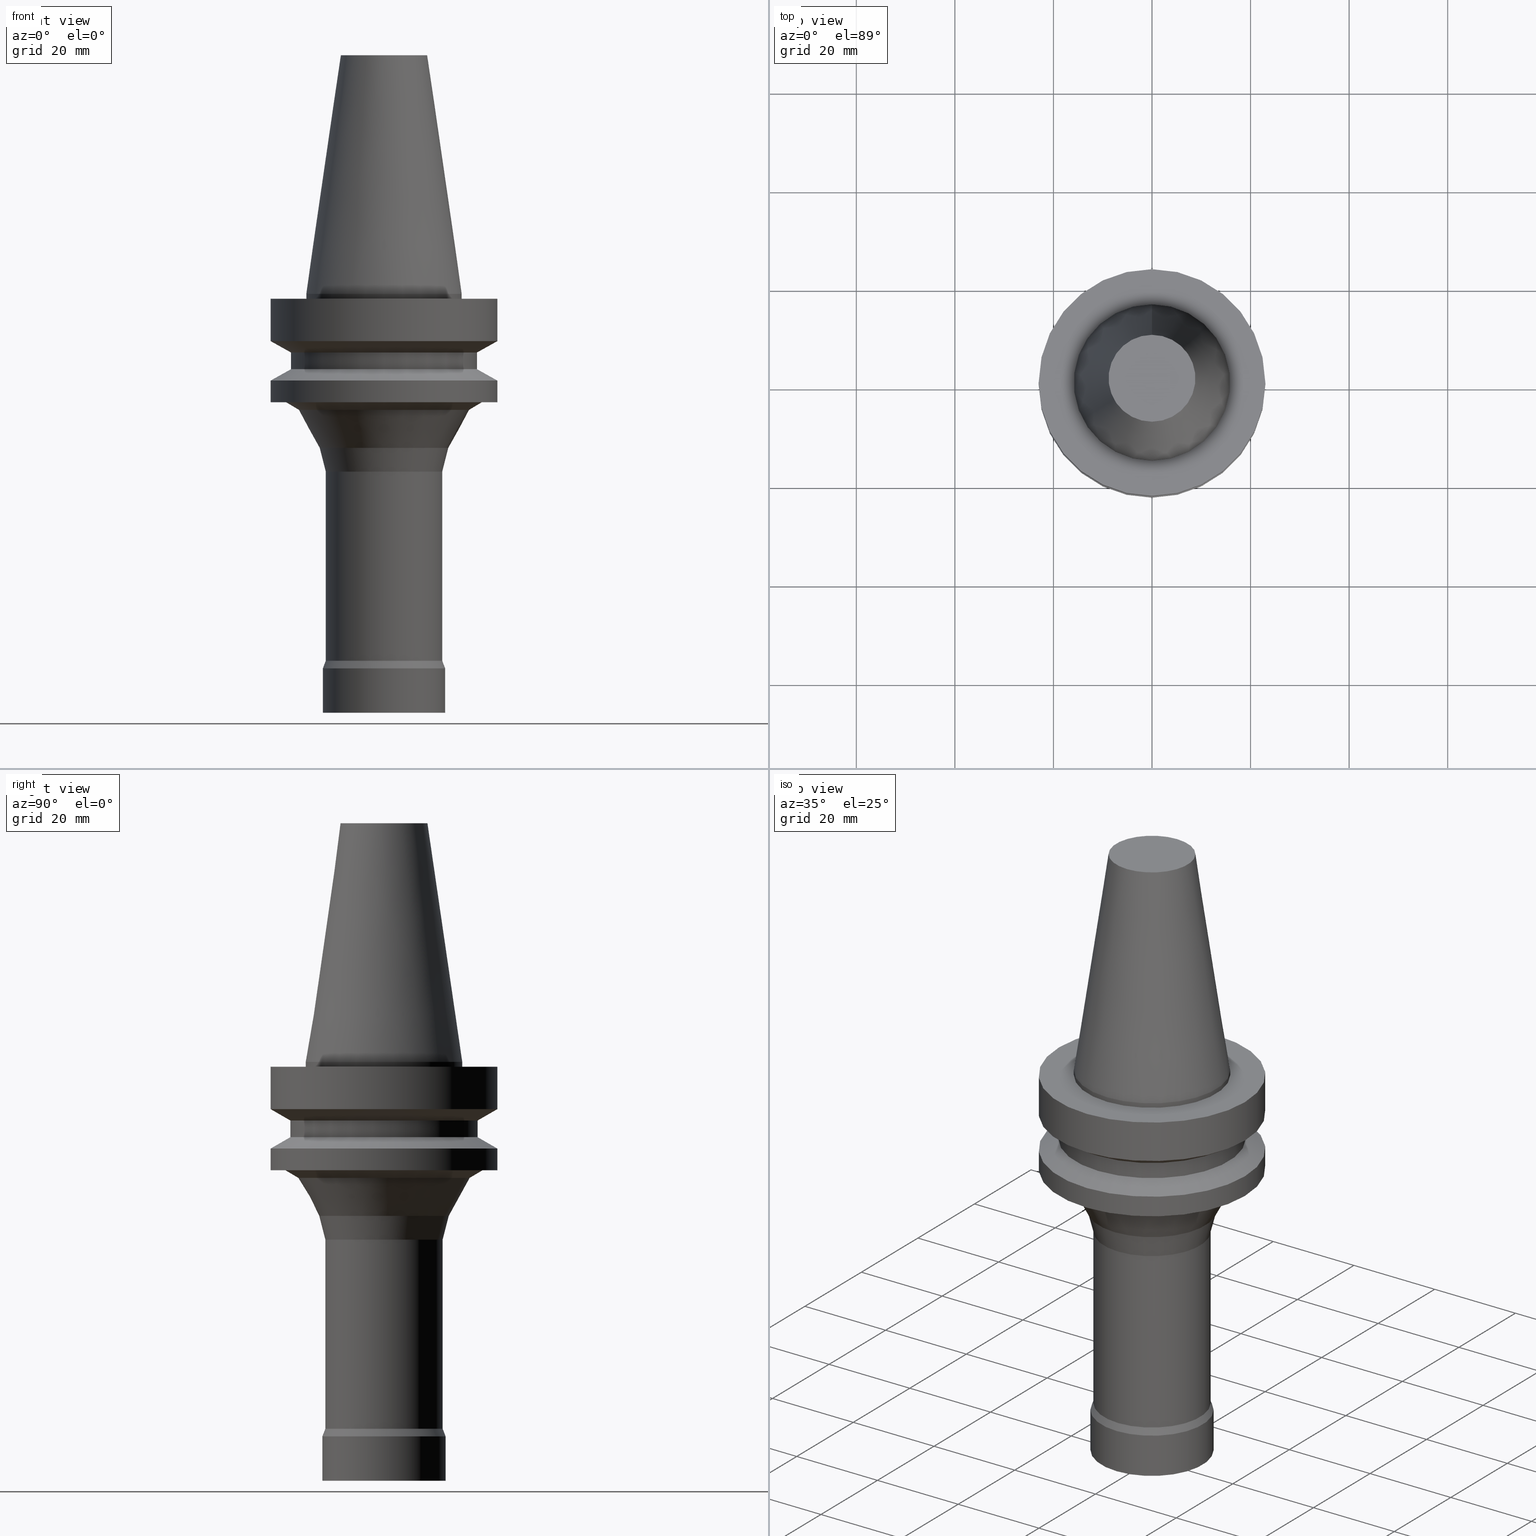
[diagram: canonical four-view strip — front | top / right | iso, engineering-drawing reading convention]
A machine part, canonical four-view strip (front | top / right | iso — engineering-drawing reading convention). The complete STEP part file that produces these views, byte-faithful:
ISO-10303-21;
HEADER;
FILE_DESCRIPTION((''),'1');
FILE_NAME('//Big_tech03/bigt/Translate/21_\X2\8F2A90ED7DDA\X0\-DXF/71_\X2\5207524A5DE55177\X0\/01_\X2\30A830F330C930DF30EB52A05DE5\X0\/01_\X2\30D530EB30AB30C330C830DF30EB\X0\ FCM/BBT/BBT30/BBT30-FCM25092L-85.stp','2012-05-29T08:19:13',(''),(''),'Spatial Interop R18','Kubotek KeyCreator V8.5.1 (14335)',' ');
FILE_SCHEMA(('CONFIG_CONTROL_DESIGN'));
ENDSEC;
DATA;
#1=DESIGN_CONTEXT('',#27,'design');
#2=APPLICATION_PROTOCOL_DEFINITION('INTERNATIONAL STANDARD','config_control_design',1994,#27);
#3=PRODUCT_CATEGORY_RELATIONSHIP('NONE','NONE',#28,#29);
#4=DATE_AND_TIME(#30,#31);
#5=DATE_TIME_ROLE('creation_date');
#6=DATE_TIME_ROLE('classification_date');
#7=PERSON_AND_ORGANIZATION_ROLE('creator');
#8=PERSON_AND_ORGANIZATION_ROLE('design_supplier');
#9=PERSON_AND_ORGANIZATION_ROLE('classification_officer');
#10=PERSON_AND_ORGANIZATION_ROLE('design_owner');
#11=APPROVAL_PERSON_ORGANIZATION(#32,#33,#34);
#12=APPROVAL_DATE_TIME(#4,#33);
#13=CC_DESIGN_APPROVAL(#33,(#35,#36,#37));
#14=CC_DESIGN_DATE_AND_TIME_ASSIGNMENT(#4,#5,(#37));
#15=CC_DESIGN_DATE_AND_TIME_ASSIGNMENT(#4,#6,(#35));
#16=CC_DESIGN_PERSON_AND_ORGANIZATION_ASSIGNMENT(#32,#10,(#38));
#17=CC_DESIGN_PERSON_AND_ORGANIZATION_ASSIGNMENT(#32,#7,(#37));
#18=CC_DESIGN_PERSON_AND_ORGANIZATION_ASSIGNMENT(#32,#7,(#36));
#19=CC_DESIGN_PERSON_AND_ORGANIZATION_ASSIGNMENT(#32,#8,(#36));
#20=CC_DESIGN_SECURITY_CLASSIFICATION(#35,(#36));
#21=CC_DESIGN_PERSON_AND_ORGANIZATION_ASSIGNMENT(#32,#9,(#35));
#22=SHAPE_DEFINITION_REPRESENTATION(#39,#40);
#23= (GEOMETRIC_REPRESENTATION_CONTEXT(3)GLOBAL_UNCERTAINTY_ASSIGNED_CONTEXT((#43))GLOBAL_UNIT_ASSIGNED_CONTEXT((#45,#46,#47))REPRESENTATION_CONTEXT('NONE','WORKSPACE'));
#27=APPLICATION_CONTEXT('CONFIGURATION CONTROLLED 3D DESIGNS OF MECHANICAL PARTS AND ASSEMBLIES');
#28=PRODUCT_CATEGORY('part','NONE');
#29=PRODUCT_RELATED_PRODUCT_CATEGORY('detail',' ',(#38));
#30=CALENDAR_DATE(2012,29,4);
#31=LOCAL_TIME(17,19,13.0,#49);
#32=PERSON_AND_ORGANIZATION(#50,#51);
#33=APPROVAL(#52,'SOLID MODEL');
#34=APPROVAL_ROLE('APPROVED');
#35=SECURITY_CLASSIFICATION('','',#53);
#36=PRODUCT_DEFINITION_FORMATION_WITH_SPECIFIED_SOURCE(' ','NONE',#38,.NOT_KNOWN.);
#37=PRODUCT_DEFINITION('NONE','NONE',#36,#1);
#38=PRODUCT('1','1','PART-1-DESC',(#54));
#39=PRODUCT_DEFINITION_SHAPE('NONE','NONE',#37);
#40=ADVANCED_BREP_SHAPE_REPRESENTATION('1',(#55,#56),#23);
#43=UNCERTAINTY_MEASURE_WITH_UNIT(LENGTH_MEASURE(1.0E-006),#45,'','');
#45= (CONVERSION_BASED_UNIT('MILLIMETRE',#59)LENGTH_UNIT()NAMED_UNIT(#62));
#46= (NAMED_UNIT(#64)PLANE_ANGLE_UNIT()SI_UNIT($,.RADIAN.));
#47= (NAMED_UNIT(#64)SOLID_ANGLE_UNIT()SI_UNIT($,.STERADIAN.));
#49=COORDINATED_UNIVERSAL_TIME_OFFSET(9,0,.AHEAD.);
#50=PERSON('','UNSPECIFIED',$,$,$,$);
#51=ORGANIZATION('UNSPECIFIED','UNSPECIFIED','UNSPECIFIED');
#52=APPROVAL_STATUS('approved');
#53=SECURITY_CLASSIFICATION_LEVEL('unclassified');
#54=MECHANICAL_CONTEXT('',#27,'mechanical');
#55=MANIFOLD_SOLID_BREP('1',#70);
#56=AXIS2_PLACEMENT_3D('',#71,#72,#73);
#59=LENGTH_MEASURE_WITH_UNIT(LENGTH_MEASURE(1.0),#74);
#62=DIMENSIONAL_EXPONENTS(1.0,0.0,0.0,0.0,0.0,0.0,0.0);
#64=DIMENSIONAL_EXPONENTS(0.0,0.0,0.0,0.0,0.0,0.0,0.0);
#70=CLOSED_SHELL('',(#75,#76,#77,#78,#79,#80,#81,#82,#83,#84,#85,#86,#87,#88,#89,#90,#91));
#71=CARTESIAN_POINT('',(0.0,0.0,0.0));
#72=DIRECTION('',(0.0,0.0,1.0));
#73=DIRECTION('',(1.0,0.0,0.0));
#74= (NAMED_UNIT(#62)LENGTH_UNIT()SI_UNIT(.MILLI.,.METRE.));
#75=ADVANCED_FACE('',(#93,#94),#95,.T.);
#76=ADVANCED_FACE('',(#96,#97),#98,.T.);
#77=ADVANCED_FACE('',(#99,#100),#101,.T.);
#78=ADVANCED_FACE('',(#102,#103),#104,.T.);
#79=ADVANCED_FACE('',(#105,#106),#107,.T.);
#80=ADVANCED_FACE('',(#108,#109),#110,.T.);
#81=ADVANCED_FACE('',(#111,#112),#113,.T.);
#82=ADVANCED_FACE('',(#114,#115),#116,.T.);
#83=ADVANCED_FACE('',(#117,#118),#119,.T.);
#84=ADVANCED_FACE('',(#120,#121),#122,.T.);
#85=ADVANCED_FACE('',(#123,#124),#125,.T.);
#86=ADVANCED_FACE('',(#126,#127),#128,.T.);
#87=ADVANCED_FACE('',(#129,#130),#131,.T.);
#88=ADVANCED_FACE('',(#132),#133,.T.);
#89=ADVANCED_FACE('',(#134,#135),#136,.T.);
#90=ADVANCED_FACE('',(#137),#138,.T.);
#91=ADVANCED_FACE('',(#139,#140),#141,.T.);
#93=FACE_OUTER_BOUND('',#142,.T.);
#94=FACE_BOUND('',#143,.T.);
#95=PLANE('',#144);
#96=FACE_BOUND('',#145,.T.);
#97=FACE_BOUND('',#146,.T.);
#98=CYLINDRICAL_SURFACE('',#147,23.0);
#99=FACE_BOUND('',#148,.T.);
#100=FACE_BOUND('',#149,.T.);
#101=CONICAL_SURFACE('',#150,21.0,1.04719755058882);
#102=FACE_BOUND('',#151,.T.);
#103=FACE_BOUND('',#152,.T.);
#104=CYLINDRICAL_SURFACE('',#153,19.0);
#105=FACE_BOUND('',#154,.T.);
#106=FACE_BOUND('',#155,.T.);
#107=CONICAL_SURFACE('',#156,21.0,1.04719755058882);
#108=FACE_BOUND('',#157,.T.);
#109=FACE_BOUND('',#158,.T.);
#110=CYLINDRICAL_SURFACE('',#159,23.0);
#111=FACE_BOUND('',#160,.T.);
#112=FACE_OUTER_BOUND('',#161,.T.);
#113=PLANE('',#162);
#114=FACE_BOUND('',#163,.T.);
#115=FACE_BOUND('',#164,.T.);
#116=CONICAL_SURFACE('',#165,18.68574234,1.03686555591075);
#117=FACE_BOUND('',#166,.T.);
#118=FACE_BOUND('',#167,.T.);
#119=CONICAL_SURFACE('',#168,15.25488347,0.502934783143004);
#120=FACE_BOUND('',#169,.T.);
#121=FACE_BOUND('',#170,.T.);
#122=CONICAL_SURFACE('',#171,12.51914113,0.251467392699992);
#123=FACE_BOUND('',#172,.T.);
#124=FACE_BOUND('',#173,.T.);
#125=CYLINDRICAL_SURFACE('',#174,11.9);
#126=FACE_BOUND('',#175,.T.);
#127=FACE_BOUND('',#176,.T.);
#128=CONICAL_SURFACE('',#177,12.2,0.369443267706016);
#129=FACE_BOUND('',#178,.T.);
#130=FACE_BOUND('',#179,.T.);
#131=CYLINDRICAL_SURFACE('',#180,12.5);
#132=FACE_OUTER_BOUND('',#181,.T.);
#133=PLANE('',#182);
#134=FACE_BOUND('',#183,.T.);
#135=FACE_BOUND('',#184,.T.);
#136=CYLINDRICAL_SURFACE('',#185,15.875);
#137=FACE_OUTER_BOUND('',#186,.T.);
#138=PLANE('',#187);
#139=FACE_BOUND('',#188,.T.);
#140=FACE_BOUND('',#189,.T.);
#141=CONICAL_SURFACE('',#190,12.3457500009933,0.14481587001362);
#142=EDGE_LOOP('',(#191));
#143=EDGE_LOOP('',(#192));
#144=AXIS2_PLACEMENT_3D('',#193,#194,#195);
#145=EDGE_LOOP('',(#196));
#146=EDGE_LOOP('',(#197));
#147=AXIS2_PLACEMENT_3D('',#198,#199,#200);
#148=EDGE_LOOP('',(#201));
#149=EDGE_LOOP('',(#202));
#150=AXIS2_PLACEMENT_3D('',#203,#204,#205);
#151=EDGE_LOOP('',(#206));
#152=EDGE_LOOP('',(#207));
#153=AXIS2_PLACEMENT_3D('',#208,#209,#210);
#154=EDGE_LOOP('',(#211));
#155=EDGE_LOOP('',(#212));
#156=AXIS2_PLACEMENT_3D('',#213,#214,#215);
#157=EDGE_LOOP('',(#216));
#158=EDGE_LOOP('',(#217));
#159=AXIS2_PLACEMENT_3D('',#218,#219,#220);
#160=EDGE_LOOP('',(#221));
#161=EDGE_LOOP('',(#222));
#162=AXIS2_PLACEMENT_3D('',#223,#224,#225);
#163=EDGE_LOOP('',(#226));
#164=EDGE_LOOP('',(#227));
#165=AXIS2_PLACEMENT_3D('',#228,#229,#230);
#166=EDGE_LOOP('',(#231));
#167=EDGE_LOOP('',(#232));
#168=AXIS2_PLACEMENT_3D('',#233,#234,#235);
#169=EDGE_LOOP('',(#236));
#170=EDGE_LOOP('',(#237));
#171=AXIS2_PLACEMENT_3D('',#238,#239,#240);
#172=EDGE_LOOP('',(#241));
#173=EDGE_LOOP('',(#242));
#174=AXIS2_PLACEMENT_3D('',#243,#244,#245);
#175=EDGE_LOOP('',(#246));
#176=EDGE_LOOP('',(#247));
#177=AXIS2_PLACEMENT_3D('',#248,#249,#250);
#178=EDGE_LOOP('',(#251));
#179=EDGE_LOOP('',(#252));
#180=AXIS2_PLACEMENT_3D('',#253,#254,#255);
#181=EDGE_LOOP('',(#256));
#182=AXIS2_PLACEMENT_3D('',#257,#258,#259);
#183=EDGE_LOOP('',(#260));
#184=EDGE_LOOP('',(#261));
#185=AXIS2_PLACEMENT_3D('',#262,#263,#264);
#186=EDGE_LOOP('',(#265));
#187=AXIS2_PLACEMENT_3D('',#266,#267,#268);
#188=EDGE_LOOP('',(#269));
#189=EDGE_LOOP('',(#270));
#190=AXIS2_PLACEMENT_3D('',#271,#272,#273);
#191=ORIENTED_EDGE('',*,*,#274,.F.);
#192=ORIENTED_EDGE('',*,*,#275,.T.);
#193=CARTESIAN_POINT('',(6.12323399573674E-017,19.4375,-0.999999999999998));
#194=DIRECTION('',(-6.12323399573677E-017,-1.22464679914735E-016,1.0));
#195=DIRECTION('',(1.23259516440783E-032,-1.0,-1.22464679914735E-016));
#196=ORIENTED_EDGE('',*,*,#276,.F.);
#197=ORIENTED_EDGE('',*,*,#274,.T.);
#198=CARTESIAN_POINT('',(3.24531401774049E-016,6.49062803548097E-016,-5.3));
#199=DIRECTION('',(-6.12323399573677E-017,-1.22464679914735E-016,1.0));
#200=DIRECTION('',(-1.23259516440783E-032,1.0,1.22464679914735E-016));
#201=ORIENTED_EDGE('',*,*,#277,.F.);
#202=ORIENTED_EDGE('',*,*,#276,.T.);
#203=CARTESIAN_POINT('',(6.58535479604966E-016,1.31707095920993E-015,-10.75470054));
#204=DIRECTION('',(-6.12323399573677E-017,-1.22464679914735E-016,1.0));
#205=DIRECTION('',(-1.23259516440783E-032,1.0,1.22464679914735E-016));
#206=ORIENTED_EDGE('',*,*,#278,.F.);
#207=ORIENTED_EDGE('',*,*,#277,.T.);
#208=CARTESIAN_POINT('',(8.327598234202E-016,1.6655196468404E-015,-13.6));
#209=DIRECTION('',(-6.12323399573677E-017,-1.22464679914735E-016,1.0));
#210=DIRECTION('',(-1.23259516440783E-032,1.0,1.22464679914735E-016));
#211=ORIENTED_EDGE('',*,*,#279,.F.);
#212=ORIENTED_EDGE('',*,*,#278,.T.);
#213=CARTESIAN_POINT('',(1.00698416723543E-015,2.01396833447087E-015,-16.44529946));
#214=DIRECTION('',(6.12323399573677E-017,1.22464679914735E-016,-1.0));
#215=DIRECTION('',(-1.23259516440783E-032,1.0,1.22464679914735E-016));
#216=ORIENTED_EDGE('',*,*,#280,.F.);
#217=ORIENTED_EDGE('',*,*,#279,.T.);
#218=CARTESIAN_POINT('',(1.21240033115588E-015,2.42480066231176E-015,-19.8));
#219=DIRECTION('',(-6.12323399573677E-017,-1.22464679914735E-016,1.0));
#220=DIRECTION('',(-1.23259516440783E-032,1.0,1.22464679914735E-016));
#221=ORIENTED_EDGE('',*,*,#281,.F.);
#222=ORIENTED_EDGE('',*,*,#280,.T.);
#223=CARTESIAN_POINT('',(1.34711147906209E-015,21.5,-22.0));
#224=DIRECTION('',(6.12323399573677E-017,1.22464679914735E-016,-1.0));
#225=DIRECTION('',(-1.23259516440783E-032,1.0,1.22464679914735E-016));
#226=ORIENTED_EDGE('',*,*,#282,.F.);
#227=ORIENTED_EDGE('',*,*,#281,.T.);
#228=CARTESIAN_POINT('',(1.39468910028212E-015,2.78937820056424E-015,-22.77700152));
#229=DIRECTION('',(-6.12323399573677E-017,-1.22464679914735E-016,1.0));
#230=DIRECTION('',(-1.23259516440783E-032,1.0,1.22464679914735E-016));
#231=ORIENTED_EDGE('',*,*,#283,.F.);
#232=ORIENTED_EDGE('',*,*,#282,.T.);
#233=CARTESIAN_POINT('',(1.67786007340824E-015,3.35572014681649E-015,-27.40153446));
#234=DIRECTION('',(-6.12323399573677E-017,-1.22464679914735E-016,1.0));
#235=DIRECTION('',(-1.23259516440783E-032,1.0,1.22464679914735E-016));
#236=ORIENTED_EDGE('',*,*,#284,.F.);
#237=ORIENTED_EDGE('',*,*,#283,.T.);
#238=CARTESIAN_POINT('',(2.06102305385747E-015,4.12204610771494E-015,-33.659060805));
#239=DIRECTION('',(-6.12323399573677E-017,-1.22464679914735E-016,1.0));
#240=DIRECTION('',(-1.23259516440783E-032,1.0,1.22464679914735E-016));
#241=ORIENTED_EDGE('',*,*,#285,.F.);
#242=ORIENTED_EDGE('',*,*,#284,.T.);
#243=CARTESIAN_POINT('',(3.38368564258339E-015,6.76737128516678E-015,-55.259780125));
#244=DIRECTION('',(-6.12323399573677E-017,-1.22464679914735E-016,1.0));
#245=DIRECTION('',(-1.23259516440783E-032,1.0,1.22464679914735E-016));
#246=ORIENTED_EDGE('',*,*,#286,.F.);
#247=ORIENTED_EDGE('',*,*,#285,.T.);
#248=CARTESIAN_POINT('',(4.60621821976306E-015,9.21243643952612E-015,-75.22525226));
#249=DIRECTION('',(6.12323399573677E-017,1.22464679914735E-016,-1.0));
#250=DIRECTION('',(-1.23259516440783E-032,1.0,1.22464679914735E-016));
#251=ORIENTED_EDGE('',*,*,#287,.F.);
#252=ORIENTED_EDGE('',*,*,#286,.T.);
#253=CARTESIAN_POINT('',(4.9292033665681E-015,9.85840673313619E-015,-80.5));
#254=DIRECTION('',(-6.12323399573677E-017,-1.22464679914735E-016,1.0));
#255=DIRECTION('',(-1.23259516440783E-032,1.0,1.22464679914735E-016));
#256=ORIENTED_EDGE('',*,*,#287,.T.);
#257=CARTESIAN_POINT('',(5.20474889637625E-015,6.25000000000001,-85.0));
#258=DIRECTION('',(6.12323399573677E-017,1.22464679914735E-016,-1.0));
#259=DIRECTION('',(-1.23259516440783E-032,1.0,1.22464679914735E-016));
#260=ORIENTED_EDGE('',*,*,#275,.F.);
#261=ORIENTED_EDGE('',*,*,#288,.T.);
#262=CARTESIAN_POINT('',(3.06161699786838E-017,6.12323399573676E-017,-0.5));
#263=DIRECTION('',(-6.12323399573677E-017,-1.22464679914735E-016,1.0));
#264=DIRECTION('',(-1.23259516440783E-032,1.0,1.22464679914735E-016));
#265=ORIENTED_EDGE('',*,*,#289,.F.);
#266=CARTESIAN_POINT('',(-2.96364525393659E-015,4.40825000099333,48.4));
#267=DIRECTION('',(-6.12323399573677E-017,-1.22464679914735E-016,1.0));
#268=DIRECTION('',(1.23259516440783E-032,-1.0,-1.22464679914735E-016));
#269=ORIENTED_EDGE('',*,*,#288,.F.);
#270=ORIENTED_EDGE('',*,*,#289,.T.);
#271=CARTESIAN_POINT('',(-1.4818226269683E-015,-2.96364525393659E-015,24.2));
#272=DIRECTION('',(6.12323399573677E-017,1.22464679914735E-016,-1.0));
#273=DIRECTION('',(-1.23259516440783E-032,1.0,1.22464679914735E-016));
#274=EDGE_CURVE('',#290,#290,#291,.T.);
#275=EDGE_CURVE('',#292,#292,#293,.T.);
#276=EDGE_CURVE('',#294,#294,#295,.T.);
#277=EDGE_CURVE('',#296,#296,#297,.T.);
#278=EDGE_CURVE('',#298,#298,#299,.T.);
#279=EDGE_CURVE('',#300,#300,#301,.T.);
#280=EDGE_CURVE('',#302,#302,#303,.T.);
#281=EDGE_CURVE('',#304,#304,#305,.T.);
#282=EDGE_CURVE('',#306,#306,#307,.T.);
#283=EDGE_CURVE('',#308,#308,#309,.T.);
#284=EDGE_CURVE('',#310,#310,#311,.T.);
#285=EDGE_CURVE('',#312,#312,#313,.T.);
#286=EDGE_CURVE('',#314,#314,#315,.T.);
#287=EDGE_CURVE('',#316,#316,#317,.T.);
#288=EDGE_CURVE('',#318,#318,#319,.T.);
#289=EDGE_CURVE('',#320,#320,#321,.T.);
#290=VERTEX_POINT('',#322);
#291=CIRCLE('',#323,23.0);
#292=VERTEX_POINT('',#324);
#293=CIRCLE('',#325,15.875);
#294=VERTEX_POINT('',#326);
#295=CIRCLE('',#327,23.0);
#296=VERTEX_POINT('',#328);
#297=CIRCLE('',#329,19.0);
#298=VERTEX_POINT('',#330);
#299=CIRCLE('',#331,19.0);
#300=VERTEX_POINT('',#332);
#301=CIRCLE('',#333,23.0);
#302=VERTEX_POINT('',#334);
#303=CIRCLE('',#335,23.0);
#304=VERTEX_POINT('',#336);
#305=CIRCLE('',#337,20.0);
#306=VERTEX_POINT('',#338);
#307=CIRCLE('',#339,17.37148468);
#308=VERTEX_POINT('',#340);
#309=CIRCLE('',#341,13.13828226);
#310=VERTEX_POINT('',#342);
#311=CIRCLE('',#343,11.9);
#312=VERTEX_POINT('',#344);
#313=CIRCLE('',#345,11.9);
#314=VERTEX_POINT('',#346);
#315=CIRCLE('',#347,12.5);
#316=VERTEX_POINT('',#348);
#317=CIRCLE('',#349,12.5);
#318=VERTEX_POINT('',#350);
#319=CIRCLE('',#351,15.875);
#320=VERTEX_POINT('',#352);
#321=CIRCLE('',#353,8.81650000198667);
#322=CARTESIAN_POINT('',(6.12323399573674E-017,23.0,-0.999999999999997));
#323=AXIS2_PLACEMENT_3D('',#354,#355,#356);
#324=CARTESIAN_POINT('',(6.12323399573675E-017,15.875,-0.999999999999998));
#325=AXIS2_PLACEMENT_3D('',#357,#358,#359);
#326=CARTESIAN_POINT('',(5.87830463590729E-016,23.0,-9.6));
#327=AXIS2_PLACEMENT_3D('',#360,#361,#362);
#328=CARTESIAN_POINT('',(7.29240495619201E-016,19.0,-11.90940108));
#329=AXIS2_PLACEMENT_3D('',#363,#364,#365);
#330=CARTESIAN_POINT('',(9.36279151221199E-016,19.0,-15.29059892));
#331=AXIS2_PLACEMENT_3D('',#366,#367,#368);
#332=CARTESIAN_POINT('',(1.07768918324967E-015,23.0,-17.6));
#333=AXIS2_PLACEMENT_3D('',#369,#370,#371);
#334=CARTESIAN_POINT('',(1.34711147906209E-015,23.0,-22.0));
#335=AXIS2_PLACEMENT_3D('',#372,#373,#374);
#336=CARTESIAN_POINT('',(1.34711147906209E-015,20.0,-22.0));
#337=AXIS2_PLACEMENT_3D('',#375,#376,#377);
#338=CARTESIAN_POINT('',(1.44226672150215E-015,17.37148468,-23.55400304));
#339=AXIS2_PLACEMENT_3D('',#378,#379,#380);
#340=CARTESIAN_POINT('',(1.91345342531434E-015,13.13828226,-31.24906588));
#341=AXIS2_PLACEMENT_3D('',#381,#382,#383);
#342=CARTESIAN_POINT('',(2.2085926824006E-015,11.9,-36.06905573));
#343=AXIS2_PLACEMENT_3D('',#384,#385,#386);
#344=CARTESIAN_POINT('',(4.55877860276618E-015,11.9,-74.45050452));
#345=AXIS2_PLACEMENT_3D('',#387,#388,#389);
#346=CARTESIAN_POINT('',(4.65365783675994E-015,12.5,-76.0));
#347=AXIS2_PLACEMENT_3D('',#390,#391,#392);
#348=CARTESIAN_POINT('',(5.20474889637625E-015,12.5,-85.0));
#349=AXIS2_PLACEMENT_3D('',#393,#394,#395);
#350=CARTESIAN_POINT('',(2.39407461153262E-031,15.875,-5.16130056395458E-015));
#351=AXIS2_PLACEMENT_3D('',#396,#397,#398);
#352=CARTESIAN_POINT('',(-2.96364525393659E-015,8.81650000198666,48.4));
#353=AXIS2_PLACEMENT_3D('',#399,#400,#401);
#354=CARTESIAN_POINT('',(6.12323399573677E-017,1.22464679914735E-016,-1.0));
#355=DIRECTION('',(6.12323399573677E-017,1.22464679914735E-016,-1.0));
#356=DIRECTION('',(-1.23259516440783E-032,1.0,1.22464679914735E-016));
#357=CARTESIAN_POINT('',(6.12323399573677E-017,1.22464679914735E-016,-1.0));
#358=DIRECTION('',(6.12323399573677E-017,1.22464679914735E-016,-1.0));
#359=DIRECTION('',(-1.23259516440783E-032,1.0,1.22464679914735E-016));
#360=CARTESIAN_POINT('',(5.8783046359073E-016,1.17566092718146E-015,-9.6));
#361=DIRECTION('',(6.12323399573677E-017,1.22464679914735E-016,-1.0));
#362=DIRECTION('',(-1.23259516440783E-032,1.0,1.22464679914735E-016));
#363=CARTESIAN_POINT('',(7.29240495619202E-016,1.4584809912384E-015,-11.90940108));
#364=DIRECTION('',(6.12323399573677E-017,1.22464679914735E-016,-1.0));
#365=DIRECTION('',(-1.23259516440783E-032,1.0,1.22464679914735E-016));
#366=CARTESIAN_POINT('',(9.36279151221199E-016,1.8725583024424E-015,-15.29059892));
#367=DIRECTION('',(6.12323399573677E-017,1.22464679914735E-016,-1.0));
#368=DIRECTION('',(-1.23259516440783E-032,1.0,1.22464679914735E-016));
#369=CARTESIAN_POINT('',(1.07768918324967E-015,2.15537836649934E-015,-17.6));
#370=DIRECTION('',(6.12323399573677E-017,1.22464679914735E-016,-1.0));
#371=DIRECTION('',(-1.23259516440783E-032,1.0,1.22464679914735E-016));
#372=CARTESIAN_POINT('',(1.34711147906209E-015,2.69422295812418E-015,-22.0));
#373=DIRECTION('',(6.12323399573677E-017,1.22464679914735E-016,-1.0));
#374=DIRECTION('',(-1.23259516440783E-032,1.0,1.22464679914735E-016));
#375=CARTESIAN_POINT('',(1.34711147906209E-015,2.69422295812418E-015,-22.0));
#376=DIRECTION('',(6.12323399573677E-017,1.22464679914735E-016,-1.0));
#377=DIRECTION('',(-1.23259516440783E-032,1.0,1.22464679914735E-016));
#378=CARTESIAN_POINT('',(1.44226672150215E-015,2.8845334430043E-015,-23.55400304));
#379=DIRECTION('',(6.12323399573677E-017,1.22464679914735E-016,-1.0));
#380=DIRECTION('',(-1.23259516440783E-032,1.0,1.22464679914735E-016));
#381=CARTESIAN_POINT('',(1.91345342531434E-015,3.82690685062868E-015,-31.24906588));
#382=DIRECTION('',(6.12323399573676E-017,1.22464679914735E-016,-1.0));
#383=DIRECTION('',(-1.23259516440783E-032,1.0,1.22464679914735E-016));
#384=CARTESIAN_POINT('',(2.2085926824006E-015,4.4171853648012E-015,-36.06905573));
#385=DIRECTION('',(6.12323399573677E-017,1.22464679914735E-016,-1.0));
#386=DIRECTION('',(-1.23259516440783E-032,1.0,1.22464679914735E-016));
#387=CARTESIAN_POINT('',(4.55877860276618E-015,9.11755720553235E-015,-74.45050452));
#388=DIRECTION('',(6.12323399573677E-017,1.22464679914735E-016,-1.0));
#389=DIRECTION('',(-1.23259516440783E-032,1.0,1.22464679914735E-016));
#390=CARTESIAN_POINT('',(4.65365783675994E-015,9.30731567351988E-015,-76.0));
#391=DIRECTION('',(6.12323399573677E-017,1.22464679914735E-016,-1.0));
#392=DIRECTION('',(-1.23259516440783E-032,1.0,1.22464679914735E-016));
#393=CARTESIAN_POINT('',(5.20474889637625E-015,1.04094977927525E-014,-85.0));
#394=DIRECTION('',(6.12323399573677E-017,1.22464679914735E-016,-1.0));
#395=DIRECTION('',(-1.23259516440783E-032,1.0,1.22464679914735E-016));
#396=CARTESIAN_POINT('',(4.35081943503005E-031,8.7016388700601E-031,-7.105427357601E-015));
#397=DIRECTION('',(6.12323399573677E-017,1.22464679914735E-016,-1.0));
#398=DIRECTION('',(-1.23259516440783E-032,1.0,1.22464679914735E-016));
#399=CARTESIAN_POINT('',(-2.96364525393659E-015,-5.92729050787319E-015,48.4));
#400=DIRECTION('',(6.12323399573676E-017,1.22464679914735E-016,-1.0));
#401=DIRECTION('',(-1.23259516440783E-032,1.0,1.22464679914735E-016));
ENDSEC;
END-ISO-10303-21;
